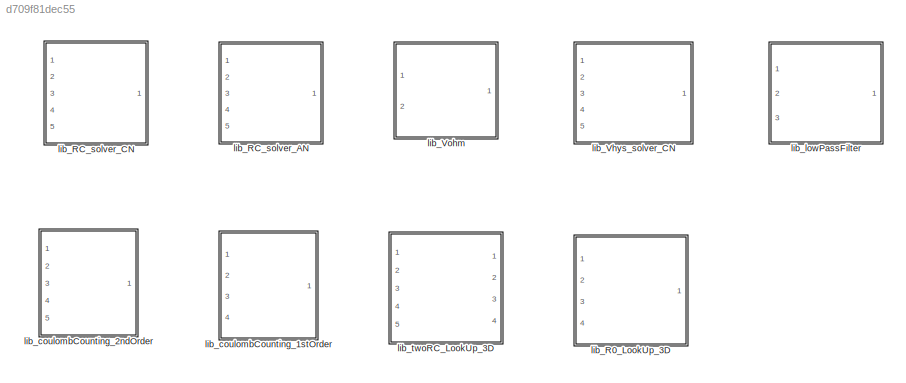
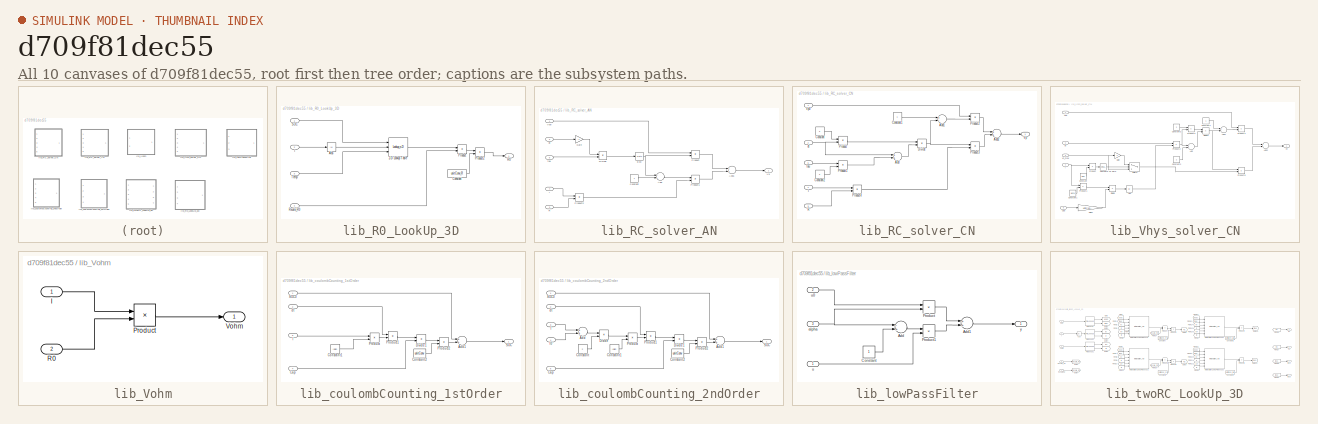
[diagram: thumbnail index - all 10 canvases of the model, root first then tree order]
MODEL slx_d709f81dec55
KIND library
CONFIG AbsTol = auto
CONFIG EnableMultiTasking = off
CONFIG FixedStep = auto
CONFIG MaxStep = auto
CONFIG MinStep = auto
CONFIG RelTol = 1e-3
CONFIG SampleTimeConstraint = Unconstrained
CONFIG Solver = VariableStepAuto
CONFIG SolverName = VariableStepAuto
CONFIG StartTime = 0.0
CONFIG StopTime = 10.0
BLOCK [SubSystem] lib_R0_LookUp_3D
  Ports = [4, 1]
  RequestExecContextInheritance = off
BLOCK [Lookup_n-D] lib_R0_LookUp_3D/2-D Lookup Table
  BreakpointsForDimension1 = Xsoc
  BreakpointsForDimension2 = Xcurrent
  BreakpointsForDimension3 = Xtemp
  InternalRulePriority = Speed
  NumberOfTableDimensions = 3
  Ports = [3, 1]
  RndMeth = Simplest
  Table = R0data
BLOCK [Abs] lib_R0_LookUp_3D/Abs
  SaturateOnIntegerOverflow = off
BLOCK [Constant] lib_R0_LookUp_3D/Constant
  Value = unitConv_R
BLOCK [Inport] lib_R0_LookUp_3D/I
  IconDisplay = Port number
  Port = 2
BLOCK [Product] lib_R0_LookUp_3D/Product
  InputSameDT = off
  OutDataTypeStr = Inherit: Inherit via internal rule
  Ports = [2, 1]
  RndMeth = Floor
  SaturateOnIntegerOverflow = off
BLOCK [Product] lib_R0_LookUp_3D/Product2
  InputSameDT = off
  OutDataTypeStr = Inherit: Inherit via internal rule
  Ports = [2, 1]
  RndMeth = Floor
  SaturateOnIntegerOverflow = off
BLOCK [Outport] lib_R0_LookUp_3D/R0
  IconDisplay = Port number
BLOCK [Inport] lib_R0_LookUp_3D/Rscale_R0
  IconDisplay = Port number
  Port = 4
BLOCK [Inport] lib_R0_LookUp_3D/SOC
  IconDisplay = Port number
BLOCK [Inport] lib_R0_LookUp_3D/Temp
  IconDisplay = Port number
  Port = 3
BLOCK [SubSystem] lib_RC_solver_AN
  Ports = [5, 1]
  RequestExecContextInheritance = off
BLOCK [Sum] lib_RC_solver_AN/Add
  InputSameDT = off
  Inputs = -+
  OutDataTypeStr = Inherit: Inherit via internal rule
  Ports = [2, 1]
  SaturateOnIntegerOverflow = off
BLOCK [Sum] lib_RC_solver_AN/Add1
  InputSameDT = off
  OutDataTypeStr = Inherit: Inherit via internal rule
  Ports = [2, 1]
  SaturateOnIntegerOverflow = off
BLOCK [Constant] lib_RC_solver_AN/Constant
BLOCK [Product] lib_RC_solver_AN/Divide
  InputSameDT = off
  Inputs = */
  OutDataTypeStr = Inherit: Inherit via internal rule
  Ports = [2, 1]
  RndMeth = Floor
  SaturateOnIntegerOverflow = off
BLOCK [Math] lib_RC_solver_AN/Exp
  Ports = [1, 1]
BLOCK [Gain] lib_RC_solver_AN/Gain
  Gain = -1
  OutDataTypeStr = Inherit: Inherit via internal rule
  ParamDataTypeStr = Inherit: Inherit via internal rule
  SaturateOnIntegerOverflow = off
BLOCK [Inport] lib_RC_solver_AN/I
  IconDisplay = Port number
  Port = 4
BLOCK [Product] lib_RC_solver_AN/Product
  InputSameDT = off
  OutDataTypeStr = Inherit: Inherit via internal rule
  Ports = [2, 1]
  RndMeth = Floor
  SaturateOnIntegerOverflow = off
BLOCK [Product] lib_RC_solver_AN/Product1
  InputSameDT = off
  OutDataTypeStr = Inherit: Inherit via internal rule
  Ports = [2, 1]
  RndMeth = Floor
  SaturateOnIntegerOverflow = off
BLOCK [Product] lib_RC_solver_AN/Product2
  InputSameDT = off
  OutDataTypeStr = Inherit: Inherit via internal rule
  Ports = [2, 1]
  RndMeth = Floor
  SaturateOnIntegerOverflow = off
BLOCK [Inport] lib_RC_solver_AN/R
  IconDisplay = Port number
  Port = 3
BLOCK [Outport] lib_RC_solver_AN/Vp
  IconDisplay = Port number
BLOCK [Inport] lib_RC_solver_AN/Vp0
  IconDisplay = Port number
BLOCK [Inport] lib_RC_solver_AN/dt
  IconDisplay = Port number
  Port = 2
BLOCK [Inport] lib_RC_solver_AN/tau
  IconDisplay = Port number
  Port = 5
BLOCK [SubSystem] lib_RC_solver_CN
  Ports = [5, 1]
  RTWSystemCode = Reusable function
  RequestExecContextInheritance = off
  TreatAsAtomicUnit = on
BLOCK [Sum] lib_RC_solver_CN/Add
  InputSameDT = off
  OutDataTypeStr = Inherit: Inherit via internal rule
  Ports = [2, 1]
  SaturateOnIntegerOverflow = off
BLOCK [Sum] lib_RC_solver_CN/Add1
  InputSameDT = off
  Inputs = +-
  OutDataTypeStr = Inherit: Inherit via internal rule
  Ports = [2, 1]
  SaturateOnIntegerOverflow = off
BLOCK [Sum] lib_RC_solver_CN/Add2
  InputSameDT = off
  OutDataTypeStr = Inherit: Inherit via internal rule
  Ports = [2, 1]
  SaturateOnIntegerOverflow = off
BLOCK [Constant] lib_RC_solver_CN/Constant
  Value = 2
BLOCK [Constant] lib_RC_solver_CN/Constant1
BLOCK [Constant] lib_RC_solver_CN/Constant2
  Value = 2
BLOCK [Product] lib_RC_solver_CN/Divide
  InputSameDT = off
  Inputs = */
  OutDataTypeStr = Inherit: Inherit via internal rule
  Ports = [2, 1]
  RndMeth = Floor
  SaturateOnIntegerOverflow = off
BLOCK [Inport] lib_RC_solver_CN/I
  IconDisplay = Port number
  Port = 4
BLOCK [Product] lib_RC_solver_CN/Product
  InputSameDT = off
  OutDataTypeStr = Inherit: Inherit via internal rule
  Ports = [2, 1]
  RndMeth = Floor
  SaturateOnIntegerOverflow = off
BLOCK [Product] lib_RC_solver_CN/Product1
  InputSameDT = off
  OutDataTypeStr = Inherit: Inherit via internal rule
  Ports = [2, 1]
  RndMeth = Floor
  SaturateOnIntegerOverflow = off
BLOCK [Product] lib_RC_solver_CN/Product2
  InputSameDT = off
  OutDataTypeStr = Inherit: Inherit via internal rule
  Ports = [2, 1]
  RndMeth = Floor
  SaturateOnIntegerOverflow = off
BLOCK [Product] lib_RC_solver_CN/Product3
  InputSameDT = off
  OutDataTypeStr = Inherit: Inherit via internal rule
  Ports = [2, 1]
  RndMeth = Floor
  SaturateOnIntegerOverflow = off
BLOCK [Product] lib_RC_solver_CN/Product4
  InputSameDT = off
  OutDataTypeStr = Inherit: Inherit via internal rule
  Ports = [2, 1]
  RndMeth = Floor
  SaturateOnIntegerOverflow = off
BLOCK [Inport] lib_RC_solver_CN/R
  IconDisplay = Port number
  Port = 3
BLOCK [Outport] lib_RC_solver_CN/Vp
  IconDisplay = Port number
BLOCK [Inport] lib_RC_solver_CN/Vp0
  IconDisplay = Port number
BLOCK [Inport] lib_RC_solver_CN/dt
  IconDisplay = Port number
  Port = 2
BLOCK [Inport] lib_RC_solver_CN/tau
  IconDisplay = Port number
  Port = 5
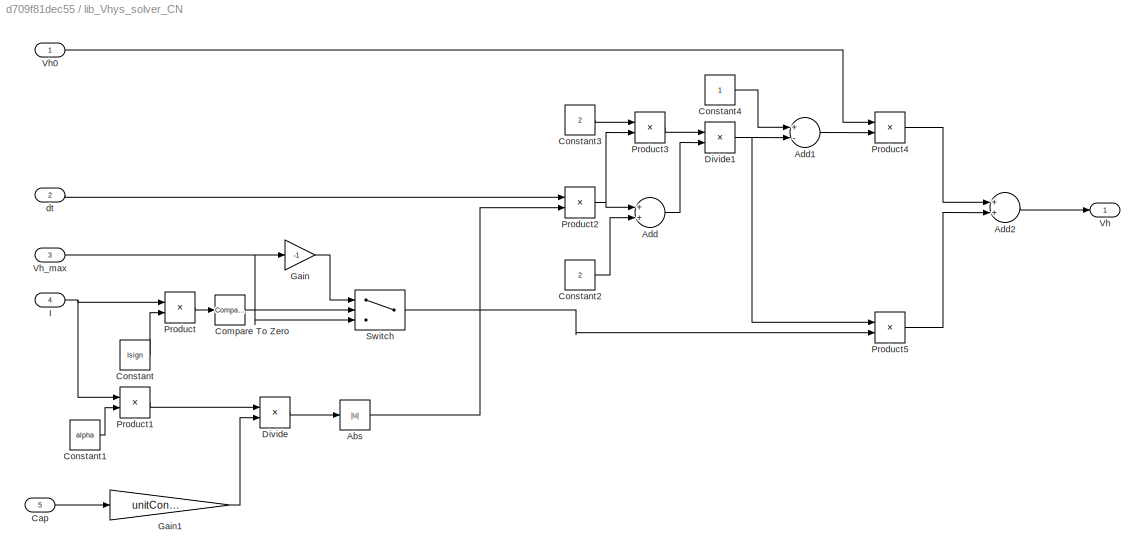
BLOCK [SubSystem] lib_Vhys_solver_CN
  Ports = [5, 1]
  RequestExecContextInheritance = off
BLOCK [Abs] lib_Vhys_solver_CN/Abs
  SaturateOnIntegerOverflow = off
BLOCK [Sum] lib_Vhys_solver_CN/Add
  InputSameDT = off
  OutDataTypeStr = Inherit: Inherit via internal rule
  Ports = [2, 1]
  SaturateOnIntegerOverflow = off
BLOCK [Sum] lib_Vhys_solver_CN/Add1
  InputSameDT = off
  Inputs = +-
  OutDataTypeStr = Inherit: Inherit via internal rule
  Ports = [2, 1]
  SaturateOnIntegerOverflow = off
BLOCK [Sum] lib_Vhys_solver_CN/Add2
  InputSameDT = off
  OutDataTypeStr = Inherit: Inherit via internal rule
  Ports = [2, 1]
  SaturateOnIntegerOverflow = off
BLOCK [Inport] lib_Vhys_solver_CN/Cap
  IconDisplay = Port number
  Port = 5
BLOCK [Reference] lib_Vhys_solver_CN/Compare To Zero  REF=simulink/Logic and Bit
Operations/Compare
To Zero
  Ports = [1, 1]
  SourceBlock = simulink/Logic and Bit\nOperations/Compare\nTo Zero
  SourceProductBaseCode = SL
  SourceProductName = Simulink
  SourceType = Compare To Zero
BLOCK [Constant] lib_Vhys_solver_CN/Constant
  Value = Isign
BLOCK [Constant] lib_Vhys_solver_CN/Constant1
  Value = alpha
BLOCK [Constant] lib_Vhys_solver_CN/Constant2
  Value = 2
BLOCK [Constant] lib_Vhys_solver_CN/Constant3
  Value = 2
BLOCK [Constant] lib_Vhys_solver_CN/Constant4
BLOCK [Product] lib_Vhys_solver_CN/Divide
  InputSameDT = off
  Inputs = */
  OutDataTypeStr = Inherit: Inherit via internal rule
  Ports = [2, 1]
  RndMeth = Floor
  SaturateOnIntegerOverflow = off
BLOCK [Product] lib_Vhys_solver_CN/Divide1
  InputSameDT = off
  Inputs = */
  OutDataTypeStr = Inherit: Inherit via internal rule
  Ports = [2, 1]
  RndMeth = Floor
  SaturateOnIntegerOverflow = off
BLOCK [Gain] lib_Vhys_solver_CN/Gain
  Gain = -1
  OutDataTypeStr = Inherit: Inherit via internal rule
  ParamDataTypeStr = Inherit: Inherit via internal rule
  SaturateOnIntegerOverflow = off
BLOCK [Gain] lib_Vhys_solver_CN/Gain1
  Gain = unitConv_Cap
  OutDataTypeStr = Inherit: Inherit via internal rule
  ParamDataTypeStr = Inherit: Inherit via internal rule
  SaturateOnIntegerOverflow = off
BLOCK [Inport] lib_Vhys_solver_CN/I
  IconDisplay = Port number
  Port = 4
BLOCK [Product] lib_Vhys_solver_CN/Product
  InputSameDT = off
  OutDataTypeStr = Inherit: Inherit via internal rule
  Ports = [2, 1]
  RndMeth = Floor
  SaturateOnIntegerOverflow = off
BLOCK [Product] lib_Vhys_solver_CN/Product1
  InputSameDT = off
  OutDataTypeStr = Inherit: Inherit via internal rule
  Ports = [2, 1]
  RndMeth = Floor
  SaturateOnIntegerOverflow = off
BLOCK [Product] lib_Vhys_solver_CN/Product2
  InputSameDT = off
  OutDataTypeStr = Inherit: Inherit via internal rule
  Ports = [2, 1]
  RndMeth = Floor
  SaturateOnIntegerOverflow = off
BLOCK [Product] lib_Vhys_solver_CN/Product3
  InputSameDT = off
  OutDataTypeStr = Inherit: Inherit via internal rule
  Ports = [2, 1]
  RndMeth = Floor
  SaturateOnIntegerOverflow = off
BLOCK [Product] lib_Vhys_solver_CN/Product4
  InputSameDT = off
  OutDataTypeStr = Inherit: Inherit via internal rule
  Ports = [2, 1]
  RndMeth = Floor
  SaturateOnIntegerOverflow = off
BLOCK [Product] lib_Vhys_solver_CN/Product5
  InputSameDT = off
  OutDataTypeStr = Inherit: Inherit via internal rule
  Ports = [2, 1]
  RndMeth = Floor
  SaturateOnIntegerOverflow = off
BLOCK [Switch] lib_Vhys_solver_CN/Switch
  Criteria = u2 ~= 0
  InputSameDT = off
  SaturateOnIntegerOverflow = off
BLOCK [Outport] lib_Vhys_solver_CN/Vh
  IconDisplay = Port number
BLOCK [Inport] lib_Vhys_solver_CN/Vh0
  IconDisplay = Port number
BLOCK [Inport] lib_Vhys_solver_CN/Vh_max
  IconDisplay = Port number
  Port = 3
BLOCK [Inport] lib_Vhys_solver_CN/dt
  IconDisplay = Port number
  Port = 2
BLOCK [SubSystem] lib_Vohm
  Ports = [2, 1]
  RequestExecContextInheritance = off
BLOCK [Inport] lib_Vohm/I
  IconDisplay = Port number
BLOCK [Product] lib_Vohm/Product
  InputSameDT = off
  OutDataTypeStr = Inherit: Inherit via internal rule
  Ports = [2, 1]
  RndMeth = Floor
  SaturateOnIntegerOverflow = off
BLOCK [Inport] lib_Vohm/R0
  IconDisplay = Port number
  Port = 2
BLOCK [Outport] lib_Vohm/Vohm
  IconDisplay = Port number
BLOCK [SubSystem] lib_coulombCounting_1stOrder
  Ports = [4, 1]
  RequestExecContextInheritance = off
BLOCK [Sum] lib_coulombCounting_1stOrder/Add1
  InputSameDT = off
  OutDataTypeStr = Inherit: Inherit via internal rule
  Ports = [2, 1]
  SaturateOnIntegerOverflow = off
BLOCK [Inport] lib_coulombCounting_1stOrder/Cap
  IconDisplay = Port number
  Port = 4
BLOCK [Constant] lib_coulombCounting_1stOrder/Constant1
  SampleTime = -1
  Value = Isign
BLOCK [Constant] lib_coulombCounting_1stOrder/Constant2
  SampleTime = -1
  Value = unitConv
BLOCK [Product] lib_coulombCounting_1stOrder/Divide1
  InputSameDT = off
  Inputs = */
  OutDataTypeStr = Inherit: Inherit via internal rule
  Ports = [2, 1]
  RndMeth = Floor
  SaturateOnIntegerOverflow = off
BLOCK [Inport] lib_coulombCounting_1stOrder/I
  IconDisplay = Port number
  Port = 3
BLOCK [Product] lib_coulombCounting_1stOrder/Product
  InputSameDT = off
  OutDataTypeStr = Inherit: Inherit via internal rule
  Ports = [2, 1]
  RndMeth = Floor
  SaturateOnIntegerOverflow = off
BLOCK [Product] lib_coulombCounting_1stOrder/Product1
  InputSameDT = off
  OutDataTypeStr = Inherit: Inherit via internal rule
  Ports = [2, 1]
  RndMeth = Floor
  SaturateOnIntegerOverflow = off
BLOCK [Product] lib_coulombCounting_1stOrder/Product2
  InputSameDT = off
  OutDataTypeStr = Inherit: Inherit via internal rule
  Ports = [2, 1]
  RndMeth = Floor
  SaturateOnIntegerOverflow = off
BLOCK [Outport] lib_coulombCounting_1stOrder/SOC
  IconDisplay = Port number
BLOCK [Inport] lib_coulombCounting_1stOrder/SOC0
  IconDisplay = Port number
BLOCK [Inport] lib_coulombCounting_1stOrder/dt
  IconDisplay = Port number
  Port = 2
BLOCK [SubSystem] lib_coulombCounting_2ndOrder
  Ports = [5, 1]
  RequestExecContextInheritance = off
BLOCK [Sum] lib_coulombCounting_2ndOrder/Add
  InputSameDT = off
  OutDataTypeStr = Inherit: Inherit via internal rule
  Ports = [2, 1]
  SaturateOnIntegerOverflow = off
BLOCK [Sum] lib_coulombCounting_2ndOrder/Add1
  InputSameDT = off
  OutDataTypeStr = Inherit: Inherit via internal rule
  Ports = [2, 1]
  SaturateOnIntegerOverflow = off
BLOCK [Inport] lib_coulombCounting_2ndOrder/Cap
  IconDisplay = Port number
  Port = 5
BLOCK [Constant] lib_coulombCounting_2ndOrder/Constant
  SampleTime = -1
  Value = 2
BLOCK [Constant] lib_coulombCounting_2ndOrder/Constant1
  SampleTime = -1
  Value = Isign
BLOCK [Constant] lib_coulombCounting_2ndOrder/Constant2
  SampleTime = -1
  Value = unitConv
BLOCK [Product] lib_coulombCounting_2ndOrder/Divide
  InputSameDT = off
  Inputs = */
  OutDataTypeStr = Inherit: Inherit via internal rule
  Ports = [2, 1]
  RndMeth = Floor
  SaturateOnIntegerOverflow = off
BLOCK [Product] lib_coulombCounting_2ndOrder/Divide1
  InputSameDT = off
  Inputs = */
  OutDataTypeStr = Inherit: Inherit via internal rule
  Ports = [2, 1]
  RndMeth = Floor
  SaturateOnIntegerOverflow = off
BLOCK [Inport] lib_coulombCounting_2ndOrder/I
  IconDisplay = Port number
  Port = 3
BLOCK [Inport] lib_coulombCounting_2ndOrder/I0
  IconDisplay = Port number
  Port = 4
BLOCK [Product] lib_coulombCounting_2ndOrder/Product
  InputSameDT = off
  OutDataTypeStr = Inherit: Inherit via internal rule
  Ports = [2, 1]
  RndMeth = Floor
  SaturateOnIntegerOverflow = off
BLOCK [Product] lib_coulombCounting_2ndOrder/Product1
  InputSameDT = off
  OutDataTypeStr = Inherit: Inherit via internal rule
  Ports = [2, 1]
  RndMeth = Floor
  SaturateOnIntegerOverflow = off
BLOCK [Product] lib_coulombCounting_2ndOrder/Product2
  InputSameDT = off
  OutDataTypeStr = Inherit: Inherit via internal rule
  Ports = [2, 1]
  RndMeth = Floor
  SaturateOnIntegerOverflow = off
BLOCK [Outport] lib_coulombCounting_2ndOrder/SOC
  IconDisplay = Port number
BLOCK [Inport] lib_coulombCounting_2ndOrder/SOC0
  IconDisplay = Port number
BLOCK [Inport] lib_coulombCounting_2ndOrder/dt
  IconDisplay = Port number
  Port = 2
BLOCK [SubSystem] lib_lowPassFilter
  Ports = [3, 1]
  RequestExecContextInheritance = off
BLOCK [Sum] lib_lowPassFilter/Add
  InputSameDT = off
  Inputs = -+
  OutDataTypeStr = Inherit: Inherit via internal rule
  Ports = [2, 1]
  SaturateOnIntegerOverflow = off
BLOCK [Sum] lib_lowPassFilter/Add1
  InputSameDT = off
  OutDataTypeStr = Inherit: Inherit via internal rule
  Ports = [2, 1]
  SaturateOnIntegerOverflow = off
BLOCK [Constant] lib_lowPassFilter/Constant
BLOCK [Product] lib_lowPassFilter/Product
  InputSameDT = off
  OutDataTypeStr = Inherit: Inherit via internal rule
  Ports = [2, 1]
  RndMeth = Floor
  SaturateOnIntegerOverflow = off
BLOCK [Product] lib_lowPassFilter/Product1
  InputSameDT = off
  OutDataTypeStr = Inherit: Inherit via internal rule
  Ports = [2, 1]
  RndMeth = Floor
  SaturateOnIntegerOverflow = off
BLOCK [Inport] lib_lowPassFilter/alpha
  IconDisplay = Port number
  Port = 3
BLOCK [Inport] lib_lowPassFilter/u
  IconDisplay = Port number
BLOCK [Inport] lib_lowPassFilter/u0
  IconDisplay = Port number
  Port = 2
BLOCK [Outport] lib_lowPassFilter/y
  IconDisplay = Port number
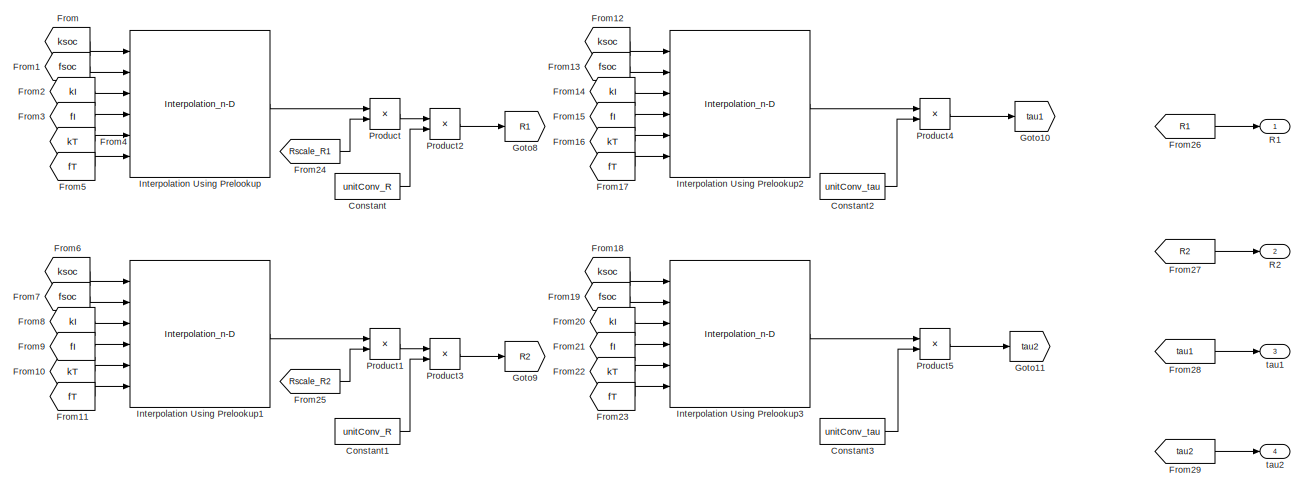
[diagram: lib_twoRC_LookUp_3D - part 1/2, most of the canvas]
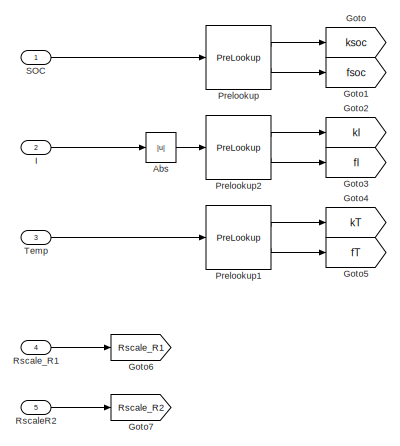
[diagram: lib_twoRC_LookUp_3D - part 2/2, left side, full height]
BLOCK [SubSystem] lib_twoRC_LookUp_3D
  Ports = [5, 4]
  RequestExecContextInheritance = off
BLOCK [Abs] lib_twoRC_LookUp_3D/Abs
  SaturateOnIntegerOverflow = off
BLOCK [Constant] lib_twoRC_LookUp_3D/Constant
  Value = unitConv_R
BLOCK [Constant] lib_twoRC_LookUp_3D/Constant1
  Value = unitConv_R
BLOCK [Constant] lib_twoRC_LookUp_3D/Constant2
  Value = unitConv_tau
BLOCK [Constant] lib_twoRC_LookUp_3D/Constant3
  Value = unitConv_tau
BLOCK [From] lib_twoRC_LookUp_3D/From
  GotoTag = ksoc
BLOCK [From] lib_twoRC_LookUp_3D/From1
  GotoTag = fsoc
BLOCK [From] lib_twoRC_LookUp_3D/From10
  GotoTag = kT
BLOCK [From] lib_twoRC_LookUp_3D/From11
  GotoTag = fT
BLOCK [From] lib_twoRC_LookUp_3D/From12
  GotoTag = ksoc
BLOCK [From] lib_twoRC_LookUp_3D/From13
  GotoTag = fsoc
BLOCK [From] lib_twoRC_LookUp_3D/From14
  GotoTag = kI
BLOCK [From] lib_twoRC_LookUp_3D/From15
  GotoTag = fI
BLOCK [From] lib_twoRC_LookUp_3D/From16
  GotoTag = kT
BLOCK [From] lib_twoRC_LookUp_3D/From17
  GotoTag = fT
BLOCK [From] lib_twoRC_LookUp_3D/From18
  GotoTag = ksoc
BLOCK [From] lib_twoRC_LookUp_3D/From19
  GotoTag = fsoc
BLOCK [From] lib_twoRC_LookUp_3D/From2
  GotoTag = kI
BLOCK [From] lib_twoRC_LookUp_3D/From20
  GotoTag = kI
BLOCK [From] lib_twoRC_LookUp_3D/From21
  GotoTag = fI
BLOCK [From] lib_twoRC_LookUp_3D/From22
  GotoTag = kT
BLOCK [From] lib_twoRC_LookUp_3D/From23
  GotoTag = fT
BLOCK [From] lib_twoRC_LookUp_3D/From24
  GotoTag = Rscale_R1
BLOCK [From] lib_twoRC_LookUp_3D/From25
  GotoTag = Rscale_R2
BLOCK [From] lib_twoRC_LookUp_3D/From26
  GotoTag = R1
BLOCK [From] lib_twoRC_LookUp_3D/From27
  GotoTag = R2
BLOCK [From] lib_twoRC_LookUp_3D/From28
  GotoTag = tau1
BLOCK [From] lib_twoRC_LookUp_3D/From29
  GotoTag = tau2
BLOCK [From] lib_twoRC_LookUp_3D/From3
  GotoTag = fI
BLOCK [From] lib_twoRC_LookUp_3D/From4
  GotoTag = kT
BLOCK [From] lib_twoRC_LookUp_3D/From5
  GotoTag = fT
BLOCK [From] lib_twoRC_LookUp_3D/From6
  GotoTag = ksoc
BLOCK [From] lib_twoRC_LookUp_3D/From7
  GotoTag = fsoc
BLOCK [From] lib_twoRC_LookUp_3D/From8
  GotoTag = kI
BLOCK [From] lib_twoRC_LookUp_3D/From9
  GotoTag = fI
BLOCK [Goto] lib_twoRC_LookUp_3D/Goto
  GotoTag = ksoc
BLOCK [Goto] lib_twoRC_LookUp_3D/Goto1
  GotoTag = fsoc
BLOCK [Goto] lib_twoRC_LookUp_3D/Goto10
  GotoTag = tau1
BLOCK [Goto] lib_twoRC_LookUp_3D/Goto11
  GotoTag = tau2
BLOCK [Goto] lib_twoRC_LookUp_3D/Goto2
  GotoTag = kI
BLOCK [Goto] lib_twoRC_LookUp_3D/Goto3
  GotoTag = fI
BLOCK [Goto] lib_twoRC_LookUp_3D/Goto4
  GotoTag = kT
BLOCK [Goto] lib_twoRC_LookUp_3D/Goto5
  GotoTag = fT
BLOCK [Goto] lib_twoRC_LookUp_3D/Goto6
  GotoTag = Rscale_R1
BLOCK [Goto] lib_twoRC_LookUp_3D/Goto7
  GotoTag = Rscale_R2
BLOCK [Goto] lib_twoRC_LookUp_3D/Goto8
  GotoTag = R1
BLOCK [Goto] lib_twoRC_LookUp_3D/Goto9
  GotoTag = R2
BLOCK [Inport] lib_twoRC_LookUp_3D/I
  IconDisplay = Port number
  Port = 2
BLOCK [Interpolation_n-D] lib_twoRC_LookUp_3D/Interpolation Using Prelookup
  ExtrapMethod = Clip
  InputPortMap = u0,u1,u2,u3,u4,u5
  IntermediateResultsDataTypeStr = Inherit: Inherit via internal rule
  InternalRulePriority = Speed
  NumberOfTableDimensions = 3
  Ports = [6, 1]
  Table = R1data
BLOCK [Interpolation_n-D] lib_twoRC_LookUp_3D/Interpolation Using Prelookup1
  ExtrapMethod = Clip
  InputPortMap = u0,u1,u2,u3,u4,u5
  IntermediateResultsDataTypeStr = Inherit: Inherit via internal rule
  InternalRulePriority = Speed
  NumberOfTableDimensions = 3
  Ports = [6, 1]
  Table = R2data
BLOCK [Interpolation_n-D] lib_twoRC_LookUp_3D/Interpolation Using Prelookup2
  ExtrapMethod = Clip
  InputPortMap = u0,u1,u2,u3,u4,u5
  IntermediateResultsDataTypeStr = Inherit: Inherit via internal rule
  InternalRulePriority = Speed
  NumberOfTableDimensions = 3
  Ports = [6, 1]
  Table = tau1data
BLOCK [Interpolation_n-D] lib_twoRC_LookUp_3D/Interpolation Using Prelookup3
  ExtrapMethod = Clip
  InputPortMap = u0,u1,u2,u3,u4,u5
  IntermediateResultsDataTypeStr = Inherit: Inherit via internal rule
  InternalRulePriority = Speed
  NumberOfTableDimensions = 3
  Ports = [6, 1]
  Table = tau2data
BLOCK [PreLookup] lib_twoRC_LookUp_3D/Prelookup
  BreakpointsData = Xsoc
  ExtrapMethod = Linear
  InputPortMap = u0
  Ports = [1, 2]
BLOCK [PreLookup] lib_twoRC_LookUp_3D/Prelookup1
  BreakpointsData = Xtemp
  ExtrapMethod = Linear
  InputPortMap = u0
  Ports = [1, 2]
BLOCK [PreLookup] lib_twoRC_LookUp_3D/Prelookup2
  BreakpointsData = Xcurrent
  ExtrapMethod = Linear
  InputPortMap = u0
  Ports = [1, 2]
BLOCK [Product] lib_twoRC_LookUp_3D/Product
  InputSameDT = off
  OutDataTypeStr = Inherit: Inherit via internal rule
  Ports = [2, 1]
  RndMeth = Floor
  SaturateOnIntegerOverflow = off
BLOCK [Product] lib_twoRC_LookUp_3D/Product1
  InputSameDT = off
  OutDataTypeStr = Inherit: Inherit via internal rule
  Ports = [2, 1]
  RndMeth = Floor
  SaturateOnIntegerOverflow = off
BLOCK [Product] lib_twoRC_LookUp_3D/Product2
  InputSameDT = off
  OutDataTypeStr = Inherit: Inherit via internal rule
  Ports = [2, 1]
  RndMeth = Floor
  SaturateOnIntegerOverflow = off
BLOCK [Product] lib_twoRC_LookUp_3D/Product3
  InputSameDT = off
  OutDataTypeStr = Inherit: Inherit via internal rule
  Ports = [2, 1]
  RndMeth = Floor
  SaturateOnIntegerOverflow = off
BLOCK [Product] lib_twoRC_LookUp_3D/Product4
  InputSameDT = off
  OutDataTypeStr = Inherit: Inherit via internal rule
  Ports = [2, 1]
  RndMeth = Floor
  SaturateOnIntegerOverflow = off
BLOCK [Product] lib_twoRC_LookUp_3D/Product5
  InputSameDT = off
  OutDataTypeStr = Inherit: Inherit via internal rule
  Ports = [2, 1]
  RndMeth = Floor
  SaturateOnIntegerOverflow = off
BLOCK [Outport] lib_twoRC_LookUp_3D/R1
  IconDisplay = Port number
BLOCK [Outport] lib_twoRC_LookUp_3D/R2
  IconDisplay = Port number
  Port = 2
BLOCK [Inport] lib_twoRC_LookUp_3D/RscaleR2
  IconDisplay = Port number
  Port = 5
BLOCK [Inport] lib_twoRC_LookUp_3D/Rscale_R1
  IconDisplay = Port number
  Port = 4
BLOCK [Inport] lib_twoRC_LookUp_3D/SOC
  IconDisplay = Port number
BLOCK [Inport] lib_twoRC_LookUp_3D/Temp
  IconDisplay = Port number
  Port = 3
BLOCK [Outport] lib_twoRC_LookUp_3D/tau1
  IconDisplay = Port number
  Port = 3
BLOCK [Outport] lib_twoRC_LookUp_3D/tau2
  IconDisplay = Port number
  Port = 4
LINE lib_R0_LookUp_3D/2-D Lookup Table:1 -> lib_R0_LookUp_3D/Product:1
LINE lib_R0_LookUp_3D/Abs:1 -> lib_R0_LookUp_3D/2-D Lookup Table:2
LINE lib_R0_LookUp_3D/Constant:1 -> lib_R0_LookUp_3D/Product2:2
LINE lib_R0_LookUp_3D/I:1 -> lib_R0_LookUp_3D/Abs:1
LINE lib_R0_LookUp_3D/Product2:1 -> lib_R0_LookUp_3D/R0:1
LINE lib_R0_LookUp_3D/Product:1 -> lib_R0_LookUp_3D/Product2:1
LINE lib_R0_LookUp_3D/Rscale_R0:1 -> lib_R0_LookUp_3D/Product:2
LINE lib_R0_LookUp_3D/SOC:1 -> lib_R0_LookUp_3D/2-D Lookup Table:1
LINE lib_R0_LookUp_3D/Temp:1 -> lib_R0_LookUp_3D/2-D Lookup Table:3
LINE lib_RC_solver_AN/Add1:1 -> lib_RC_solver_AN/Vp:1
LINE lib_RC_solver_AN/Add:1 -> lib_RC_solver_AN/Product1:1
LINE lib_RC_solver_AN/Constant:1 -> lib_RC_solver_AN/Add:2
LINE lib_RC_solver_AN/Divide:1 -> lib_RC_solver_AN/Exp:1
NET lib_RC_solver_AN/Exp:1 -> lib_RC_solver_AN/Add:1, lib_RC_solver_AN/Product:2
LINE lib_RC_solver_AN/Gain:1 -> lib_RC_solver_AN/Divide:1
LINE lib_RC_solver_AN/I:1 -> lib_RC_solver_AN/Product2:1
LINE lib_RC_solver_AN/Product1:1 -> lib_RC_solver_AN/Add1:2
LINE lib_RC_solver_AN/Product2:1 -> lib_RC_solver_AN/Product1:2
LINE lib_RC_solver_AN/Product:1 -> lib_RC_solver_AN/Add1:1
LINE lib_RC_solver_AN/R:1 -> lib_RC_solver_AN/Product2:2
LINE lib_RC_solver_AN/Vp0:1 -> lib_RC_solver_AN/Product:1
LINE lib_RC_solver_AN/dt:1 -> lib_RC_solver_AN/Gain:1
LINE lib_RC_solver_AN/tau:1 -> lib_RC_solver_AN/Divide:2
LINE lib_RC_solver_CN/Add1:1 -> lib_RC_solver_CN/Product2:2
LINE lib_RC_solver_CN/Add2:1 -> lib_RC_solver_CN/Vp:1
LINE lib_RC_solver_CN/Add:1 -> lib_RC_solver_CN/Divide:2
LINE lib_RC_solver_CN/Constant1:1 -> lib_RC_solver_CN/Add1:1
LINE lib_RC_solver_CN/Constant2:1 -> lib_RC_solver_CN/Product1:2
LINE lib_RC_solver_CN/Constant:1 -> lib_RC_solver_CN/Product:1
NET lib_RC_solver_CN/Divide:1 -> lib_RC_solver_CN/Add1:2, lib_RC_solver_CN/Product3:1
LINE lib_RC_solver_CN/I:1 -> lib_RC_solver_CN/Product4:1
LINE lib_RC_solver_CN/Product1:1 -> lib_RC_solver_CN/Add:2
LINE lib_RC_solver_CN/Product2:1 -> lib_RC_solver_CN/Add2:1
LINE lib_RC_solver_CN/Product3:1 -> lib_RC_solver_CN/Add2:2
LINE lib_RC_solver_CN/Product4:1 -> lib_RC_solver_CN/Product3:2
LINE lib_RC_solver_CN/Product:1 -> lib_RC_solver_CN/Divide:1
LINE lib_RC_solver_CN/R:1 -> lib_RC_solver_CN/Product4:2
LINE lib_RC_solver_CN/Vp0:1 -> lib_RC_solver_CN/Product2:1
NET lib_RC_solver_CN/dt:1 -> lib_RC_solver_CN/Add:1, lib_RC_solver_CN/Product:2
LINE lib_RC_solver_CN/tau:1 -> lib_RC_solver_CN/Product1:1
LINE lib_Vhys_solver_CN/Abs:1 -> lib_Vhys_solver_CN/Product2:2
LINE lib_Vhys_solver_CN/Add1:1 -> lib_Vhys_solver_CN/Product4:2
LINE lib_Vhys_solver_CN/Add2:1 -> lib_Vhys_solver_CN/Vh:1
LINE lib_Vhys_solver_CN/Add:1 -> lib_Vhys_solver_CN/Divide1:2
LINE lib_Vhys_solver_CN/Cap:1 -> lib_Vhys_solver_CN/Gain1:1
LINE lib_Vhys_solver_CN/Compare To Zero:1 -> lib_Vhys_solver_CN/Switch:2
LINE lib_Vhys_solver_CN/Constant1:1 -> lib_Vhys_solver_CN/Product1:2
LINE lib_Vhys_solver_CN/Constant2:1 -> lib_Vhys_solver_CN/Add:2
LINE lib_Vhys_solver_CN/Constant3:1 -> lib_Vhys_solver_CN/Product3:1
LINE lib_Vhys_solver_CN/Constant4:1 -> lib_Vhys_solver_CN/Add1:1
LINE lib_Vhys_solver_CN/Constant:1 -> lib_Vhys_solver_CN/Product:2
NET lib_Vhys_solver_CN/Divide1:1 -> lib_Vhys_solver_CN/Add1:2, lib_Vhys_solver_CN/Product5:1
LINE lib_Vhys_solver_CN/Divide:1 -> lib_Vhys_solver_CN/Abs:1
LINE lib_Vhys_solver_CN/Gain1:1 -> lib_Vhys_solver_CN/Divide:2
LINE lib_Vhys_solver_CN/Gain:1 -> lib_Vhys_solver_CN/Switch:1
NET lib_Vhys_solver_CN/I:1 -> lib_Vhys_solver_CN/Product1:1, lib_Vhys_solver_CN/Product:1
LINE lib_Vhys_solver_CN/Product1:1 -> lib_Vhys_solver_CN/Divide:1
NET lib_Vhys_solver_CN/Product2:1 -> lib_Vhys_solver_CN/Add:1, lib_Vhys_solver_CN/Product3:2
LINE lib_Vhys_solver_CN/Product3:1 -> lib_Vhys_solver_CN/Divide1:1
LINE lib_Vhys_solver_CN/Product4:1 -> lib_Vhys_solver_CN/Add2:1
LINE lib_Vhys_solver_CN/Product5:1 -> lib_Vhys_solver_CN/Add2:2
LINE lib_Vhys_solver_CN/Product:1 -> lib_Vhys_solver_CN/Compare To Zero:1
LINE lib_Vhys_solver_CN/Switch:1 -> lib_Vhys_solver_CN/Product5:2
LINE lib_Vhys_solver_CN/Vh0:1 -> lib_Vhys_solver_CN/Product4:1
NET lib_Vhys_solver_CN/Vh_max:1 -> lib_Vhys_solver_CN/Gain:1, lib_Vhys_solver_CN/Switch:3
LINE lib_Vhys_solver_CN/dt:1 -> lib_Vhys_solver_CN/Product2:1
LINE lib_Vohm/I:1 -> lib_Vohm/Product:1
LINE lib_Vohm/Product:1 -> lib_Vohm/Vohm:1
LINE lib_Vohm/R0:1 -> lib_Vohm/Product:2
LINE lib_coulombCounting_1stOrder/Add1:1 -> lib_coulombCounting_1stOrder/SOC:1
LINE lib_coulombCounting_1stOrder/Cap:1 -> lib_coulombCounting_1stOrder/Divide1:2
LINE lib_coulombCounting_1stOrder/Constant1:1 -> lib_coulombCounting_1stOrder/Product:2
LINE lib_coulombCounting_1stOrder/Constant2:1 -> lib_coulombCounting_1stOrder/Product2:2
LINE lib_coulombCounting_1stOrder/Divide1:1 -> lib_coulombCounting_1stOrder/Product2:1
LINE lib_coulombCounting_1stOrder/I:1 -> lib_coulombCounting_1stOrder/Product:1
LINE lib_coulombCounting_1stOrder/Product1:1 -> lib_coulombCounting_1stOrder/Divide1:1
LINE lib_coulombCounting_1stOrder/Product2:1 -> lib_coulombCounting_1stOrder/Add1:2
LINE lib_coulombCounting_1stOrder/Product:1 -> lib_coulombCounting_1stOrder/Product1:2
LINE lib_coulombCounting_1stOrder/SOC0:1 -> lib_coulombCounting_1stOrder/Add1:1
LINE lib_coulombCounting_1stOrder/dt:1 -> lib_coulombCounting_1stOrder/Product1:1
LINE lib_coulombCounting_2ndOrder/Add1:1 -> lib_coulombCounting_2ndOrder/SOC:1
LINE lib_coulombCounting_2ndOrder/Add:1 -> lib_coulombCounting_2ndOrder/Divide:1
LINE lib_coulombCounting_2ndOrder/Cap:1 -> lib_coulombCounting_2ndOrder/Divide1:2
LINE lib_coulombCounting_2ndOrder/Constant1:1 -> lib_coulombCounting_2ndOrder/Product:2
LINE lib_coulombCounting_2ndOrder/Constant2:1 -> lib_coulombCounting_2ndOrder/Product2:2
LINE lib_coulombCounting_2ndOrder/Constant:1 -> lib_coulombCounting_2ndOrder/Divide:2
LINE lib_coulombCounting_2ndOrder/Divide1:1 -> lib_coulombCounting_2ndOrder/Product2:1
LINE lib_coulombCounting_2ndOrder/Divide:1 -> lib_coulombCounting_2ndOrder/Product:1
LINE lib_coulombCounting_2ndOrder/I0:1 -> lib_coulombCounting_2ndOrder/Add:2
LINE lib_coulombCounting_2ndOrder/I:1 -> lib_coulombCounting_2ndOrder/Add:1
LINE lib_coulombCounting_2ndOrder/Product1:1 -> lib_coulombCounting_2ndOrder/Divide1:1
LINE lib_coulombCounting_2ndOrder/Product2:1 -> lib_coulombCounting_2ndOrder/Add1:2
LINE lib_coulombCounting_2ndOrder/Product:1 -> lib_coulombCounting_2ndOrder/Product1:2
LINE lib_coulombCounting_2ndOrder/SOC0:1 -> lib_coulombCounting_2ndOrder/Add1:1
LINE lib_coulombCounting_2ndOrder/dt:1 -> lib_coulombCounting_2ndOrder/Product1:1
LINE lib_lowPassFilter/Add1:1 -> lib_lowPassFilter/y:1
LINE lib_lowPassFilter/Add:1 -> lib_lowPassFilter/Product1:1
LINE lib_lowPassFilter/Constant:1 -> lib_lowPassFilter/Add:2
LINE lib_lowPassFilter/Product1:1 -> lib_lowPassFilter/Add1:2
LINE lib_lowPassFilter/Product:1 -> lib_lowPassFilter/Add1:1
NET lib_lowPassFilter/alpha:1 -> lib_lowPassFilter/Add:1, lib_lowPassFilter/Product:2
LINE lib_lowPassFilter/u0:1 -> lib_lowPassFilter/Product:1
LINE lib_lowPassFilter/u:1 -> lib_lowPassFilter/Product1:2
LINE lib_twoRC_LookUp_3D/Abs:1 -> lib_twoRC_LookUp_3D/Prelookup2:1
LINE lib_twoRC_LookUp_3D/Constant1:1 -> lib_twoRC_LookUp_3D/Product3:2
LINE lib_twoRC_LookUp_3D/Constant2:1 -> lib_twoRC_LookUp_3D/Product4:2
LINE lib_twoRC_LookUp_3D/Constant3:1 -> lib_twoRC_LookUp_3D/Product5:2
LINE lib_twoRC_LookUp_3D/Constant:1 -> lib_twoRC_LookUp_3D/Product2:2
LINE lib_twoRC_LookUp_3D/From10:1 -> lib_twoRC_LookUp_3D/Interpolation Using Prelookup1:5
LINE lib_twoRC_LookUp_3D/From11:1 -> lib_twoRC_LookUp_3D/Interpolation Using Prelookup1:6
LINE lib_twoRC_LookUp_3D/From12:1 -> lib_twoRC_LookUp_3D/Interpolation Using Prelookup2:1
LINE lib_twoRC_LookUp_3D/From13:1 -> lib_twoRC_LookUp_3D/Interpolation Using Prelookup2:2
LINE lib_twoRC_LookUp_3D/From14:1 -> lib_twoRC_LookUp_3D/Interpolation Using Prelookup2:3
LINE lib_twoRC_LookUp_3D/From15:1 -> lib_twoRC_LookUp_3D/Interpolation Using Prelookup2:4
LINE lib_twoRC_LookUp_3D/From16:1 -> lib_twoRC_LookUp_3D/Interpolation Using Prelookup2:5
LINE lib_twoRC_LookUp_3D/From17:1 -> lib_twoRC_LookUp_3D/Interpolation Using Prelookup2:6
LINE lib_twoRC_LookUp_3D/From18:1 -> lib_twoRC_LookUp_3D/Interpolation Using Prelookup3:1
LINE lib_twoRC_LookUp_3D/From19:1 -> lib_twoRC_LookUp_3D/Interpolation Using Prelookup3:2
LINE lib_twoRC_LookUp_3D/From1:1 -> lib_twoRC_LookUp_3D/Interpolation Using Prelookup:2
LINE lib_twoRC_LookUp_3D/From20:1 -> lib_twoRC_LookUp_3D/Interpolation Using Prelookup3:3
LINE lib_twoRC_LookUp_3D/From21:1 -> lib_twoRC_LookUp_3D/Interpolation Using Prelookup3:4
LINE lib_twoRC_LookUp_3D/From22:1 -> lib_twoRC_LookUp_3D/Interpolation Using Prelookup3:5
LINE lib_twoRC_LookUp_3D/From23:1 -> lib_twoRC_LookUp_3D/Interpolation Using Prelookup3:6
LINE lib_twoRC_LookUp_3D/From24:1 -> lib_twoRC_LookUp_3D/Product:2
LINE lib_twoRC_LookUp_3D/From25:1 -> lib_twoRC_LookUp_3D/Product1:2
LINE lib_twoRC_LookUp_3D/From26:1 -> lib_twoRC_LookUp_3D/R1:1
LINE lib_twoRC_LookUp_3D/From27:1 -> lib_twoRC_LookUp_3D/R2:1
LINE lib_twoRC_LookUp_3D/From28:1 -> lib_twoRC_LookUp_3D/tau1:1
LINE lib_twoRC_LookUp_3D/From29:1 -> lib_twoRC_LookUp_3D/tau2:1
LINE lib_twoRC_LookUp_3D/From2:1 -> lib_twoRC_LookUp_3D/Interpolation Using Prelookup:3
LINE lib_twoRC_LookUp_3D/From3:1 -> lib_twoRC_LookUp_3D/Interpolation Using Prelookup:4
LINE lib_twoRC_LookUp_3D/From4:1 -> lib_twoRC_LookUp_3D/Interpolation Using Prelookup:5
LINE lib_twoRC_LookUp_3D/From5:1 -> lib_twoRC_LookUp_3D/Interpolation Using Prelookup:6
LINE lib_twoRC_LookUp_3D/From6:1 -> lib_twoRC_LookUp_3D/Interpolation Using Prelookup1:1
LINE lib_twoRC_LookUp_3D/From7:1 -> lib_twoRC_LookUp_3D/Interpolation Using Prelookup1:2
LINE lib_twoRC_LookUp_3D/From8:1 -> lib_twoRC_LookUp_3D/Interpolation Using Prelookup1:3
LINE lib_twoRC_LookUp_3D/From9:1 -> lib_twoRC_LookUp_3D/Interpolation Using Prelookup1:4
LINE lib_twoRC_LookUp_3D/From:1 -> lib_twoRC_LookUp_3D/Interpolation Using Prelookup:1
LINE lib_twoRC_LookUp_3D/I:1 -> lib_twoRC_LookUp_3D/Abs:1
LINE lib_twoRC_LookUp_3D/Interpolation Using Prelookup1:1 -> lib_twoRC_LookUp_3D/Product1:1
LINE lib_twoRC_LookUp_3D/Interpolation Using Prelookup2:1 -> lib_twoRC_LookUp_3D/Product4:1
LINE lib_twoRC_LookUp_3D/Interpolation Using Prelookup3:1 -> lib_twoRC_LookUp_3D/Product5:1
LINE lib_twoRC_LookUp_3D/Interpolation Using Prelookup:1 -> lib_twoRC_LookUp_3D/Product:1
LINE lib_twoRC_LookUp_3D/Prelookup1:1 -> lib_twoRC_LookUp_3D/Goto4:1
LINE lib_twoRC_LookUp_3D/Prelookup1:2 -> lib_twoRC_LookUp_3D/Goto5:1
LINE lib_twoRC_LookUp_3D/Prelookup2:1 -> lib_twoRC_LookUp_3D/Goto2:1
LINE lib_twoRC_LookUp_3D/Prelookup2:2 -> lib_twoRC_LookUp_3D/Goto3:1
LINE lib_twoRC_LookUp_3D/Prelookup:1 -> lib_twoRC_LookUp_3D/Goto:1
LINE lib_twoRC_LookUp_3D/Prelookup:2 -> lib_twoRC_LookUp_3D/Goto1:1
LINE lib_twoRC_LookUp_3D/Product1:1 -> lib_twoRC_LookUp_3D/Product3:1
LINE lib_twoRC_LookUp_3D/Product2:1 -> lib_twoRC_LookUp_3D/Goto8:1
LINE lib_twoRC_LookUp_3D/Product3:1 -> lib_twoRC_LookUp_3D/Goto9:1
LINE lib_twoRC_LookUp_3D/Product4:1 -> lib_twoRC_LookUp_3D/Goto10:1
LINE lib_twoRC_LookUp_3D/Product5:1 -> lib_twoRC_LookUp_3D/Goto11:1
LINE lib_twoRC_LookUp_3D/Product:1 -> lib_twoRC_LookUp_3D/Product2:1
LINE lib_twoRC_LookUp_3D/RscaleR2:1 -> lib_twoRC_LookUp_3D/Goto7:1
LINE lib_twoRC_LookUp_3D/Rscale_R1:1 -> lib_twoRC_LookUp_3D/Goto6:1
LINE lib_twoRC_LookUp_3D/SOC:1 -> lib_twoRC_LookUp_3D/Prelookup:1
LINE lib_twoRC_LookUp_3D/Temp:1 -> lib_twoRC_LookUp_3D/Prelookup1:1
note: NET lines group one-source signal fan-out (src -> all destinations, sorted); 1:1 wires keep LINE
